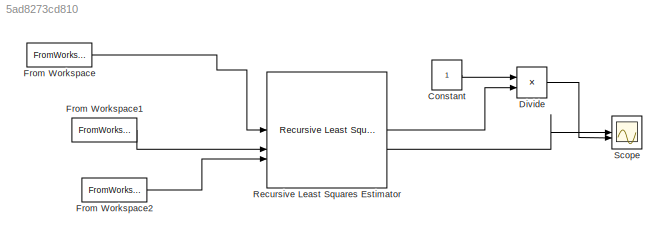
MODEL slx_5ad8273cd810
KIND model
CONFIG AbsTol = auto
CONFIG EnableMultiTasking = off
CONFIG FixedStep = auto
CONFIG MaxStep = auto
CONFIG MinStep = auto
CONFIG RelTol = 1e-3
CONFIG SampleTimeConstraint = Unconstrained
CONFIG SolverName = VariableStepAuto
CONFIG StartTime = 0.0
CONFIG StopTime = 160
BLOCK [Constant] Constant
BLOCK [Product] Divide
  Inputs = */
BLOCK [FromWorkspace] From Workspace
  SampleTime = .1
  VariableName = [subtbl.time,ones(size(subtbl.time)),subtbl.engine_power-subtbl.PwrL_Brake]
BLOCK [FromWorkspace] From Workspace1
  SampleTime = .1
  VariableName = [subtbl.time,subtbl.v_noise.*(subtbl.a_estimate+9.8*(0.0055+sin(subtbl.grade)))]
BLOCK [FromWorkspace] From Workspace2
  SampleTime = .1
  VariableName = [subtbl.time,~subtbl.decel_on]
BLOCK [Reference] Recursive Least Squares Estimator  REF=ctrlSharedLib/Recursive Least Squares Estimator
  LibrarySourceBlock = slident/Estimators/Recursive Least Squares Estimator
  SourceBlock = ctrlSharedLib/Recursive Least Squares Estimator
  SourceType = idEstimatorsRLS
BLOCK [Scope] Scope
  Floating = off
  NumInputPorts = 2
  ScopeSpecificationString = Simulink.scopes.TimeScopeBlockCfg('CurrentConfiguration', extmgr.ConfigurationSet(extmgr.Configuration('Core','General UI',true),extmgr.Configuration('Core','Source UI',true),extmgr.Configuration('Sources','WiredSimulink',true),extmgr.Configuration('Visuals','Time Domain',true,'SerializedDisplays',{struct('MinYLimReal','-7425.74034','MaxYLimReal','66757.85711','YLabelReal','','MinYLimMag','  0.000...<+1901ch>
LINE Constant:1 -> Divide:1
LINE Divide:1 -> Scope:2
LINE From Workspace1:1 -> Recursive Least Squares Estimator:2
LINE From Workspace2:1 -> Recursive Least Squares Estimator:3
LINE From Workspace:1 -> Recursive Least Squares Estimator:1
LINE Recursive Least Squares Estimator:1 -> Divide:2
LINE Recursive Least Squares Estimator:2 -> Scope:1
